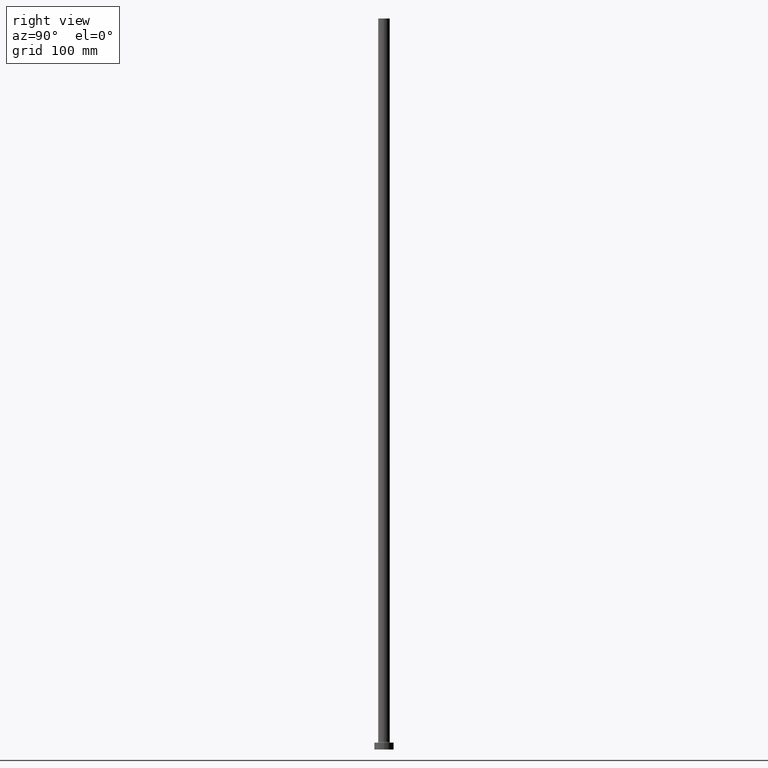
[diagram: clean part render]
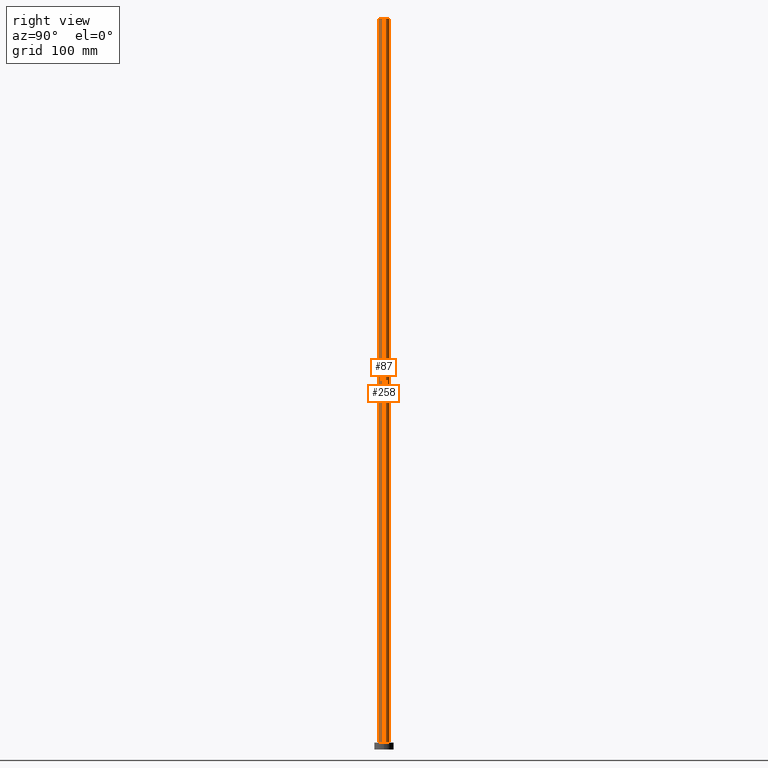
[diagram: same view with one multi-face feature highlighted, each face labeled with its STEP entity id]
A machine part, right view. The highlighted faces form ONE feature: a constant-radius fillet chain: 2 tangent blend faces with common blend radius 6 mm. The faces share edges in the B-rep.
Their STEP definitions:
[1] entity #87 (Cylinder):
#4 = CARTESIAN_POINT ( 'NONE',  ( -6.000000000000000888, 0.000000000000000000, 7.700000000000040146 ) ) ;
#9 = EDGE_CURVE ( 'NONE', #302, #449, #195, .T. ) ;
#29 = DIRECTION ( 'NONE',  ( 1.000000000000000000, 0.000000000000000000, 0.000000000000000000 ) ) ;
#31 = DIRECTION ( 'NONE',  ( -0.000000000000000000, -0.000000000000000000, -1.000000000000000000 ) ) ;
#46 = EDGE_LOOP ( 'NONE', ( #64, #174, #438, #212 ) ) ;
#57 = CARTESIAN_POINT ( 'NONE',  ( -6.000000000000000888, 0.000000000000000000, 750.0000000000000000 ) ) ;
#64 = ORIENTED_EDGE ( 'NONE', *, *, #9, .F. ) ;
#65 = VERTEX_POINT ( 'NONE', #57 ) ;
#68 = CARTESIAN_POINT ( 'NONE',  ( -6.000000000000000888, 0.000000000000000000, 750.0000000000000000 ) ) ;
#87 = ADVANCED_FACE ( 'NONE', ( #424 ), #232, .T. ) ;
#98 = EDGE_CURVE ( 'NONE', #65, #302, #243, .T. ) ;
#142 = CARTESIAN_POINT ( 'NONE',  ( 0.000000000000000000, 0.000000000000000000, 750.0000000000000000 ) ) ;
#144 = VECTOR ( 'NONE', #407, 1000.000000000000000 ) ;
#146 = VECTOR ( 'NONE', #364, 1000.000000000000000 ) ;
#174 = ORIENTED_EDGE ( 'NONE', *, *, #98, .F. ) ;
#182 = CARTESIAN_POINT ( 'NONE',  ( 0.000000000000000000, 0.000000000000000000, 750.0000000000000000 ) ) ;
#195 = LINE ( 'NONE', #259, #144 ) ;
#205 = EDGE_CURVE ( 'NONE', #242, #449, #461, .T. ) ;
#209 = AXIS2_PLACEMENT_3D ( 'NONE', #272, #350, #29 ) ;
#212 = ORIENTED_EDGE ( 'NONE', *, *, #205, .T. ) ;
#231 = CARTESIAN_POINT ( 'NONE',  ( 6.000000000000000888, 7.347880794884119736E-16, 7.700000000000040146 ) ) ;
#232 = CYLINDRICAL_SURFACE ( 'NONE', #331, 6.000000000000000888 ) ;
#240 = DIRECTION ( 'NONE',  ( -1.000000000000000000, 0.000000000000000000, 0.000000000000000000 ) ) ;
#242 = VERTEX_POINT ( 'NONE', #4 ) ;
#243 = CIRCLE ( 'NONE', #426, 6.000000000000000888 ) ;
#248 = EDGE_CURVE ( 'NONE', #65, #242, #332, .T. ) ;
#259 = CARTESIAN_POINT ( 'NONE',  ( 6.000000000000000888, 7.347880794884119736E-16, 750.0000000000000000 ) ) ;
#272 = CARTESIAN_POINT ( 'NONE',  ( 0.000000000000000000, 0.000000000000000000, 7.700000000000040146 ) ) ;
#302 = VERTEX_POINT ( 'NONE', #433 ) ;
#331 = AXIS2_PLACEMENT_3D ( 'NONE', #182, #31, #240 ) ;
#332 = LINE ( 'NONE', #68, #146 ) ;
#344 = DIRECTION ( 'NONE',  ( 1.000000000000000000, 0.000000000000000000, 0.000000000000000000 ) ) ;
#350 = DIRECTION ( 'NONE',  ( 0.000000000000000000, 0.000000000000000000, 1.000000000000000000 ) ) ;
#364 = DIRECTION ( 'NONE',  ( -0.000000000000000000, -0.000000000000000000, -1.000000000000000000 ) ) ;
#381 = DIRECTION ( 'NONE',  ( 0.000000000000000000, 0.000000000000000000, 1.000000000000000000 ) ) ;
#407 = DIRECTION ( 'NONE',  ( -0.000000000000000000, -0.000000000000000000, -1.000000000000000000 ) ) ;
#424 = FACE_OUTER_BOUND ( 'NONE', #46, .T. ) ;
#426 = AXIS2_PLACEMENT_3D ( 'NONE', #142, #381, #344 ) ;
#433 = CARTESIAN_POINT ( 'NONE',  ( 6.000000000000000888, 7.347880794884119736E-16, 750.0000000000000000 ) ) ;
#438 = ORIENTED_EDGE ( 'NONE', *, *, #248, .T. ) ;
#449 = VERTEX_POINT ( 'NONE', #231 ) ;
#461 = CIRCLE ( 'NONE', #209, 6.000000000000000888 ) ;
[2] entity #258 (Cylinder):
#4 = CARTESIAN_POINT ( 'NONE',  ( -6.000000000000000888, 0.000000000000000000, 7.700000000000040146 ) ) ;
#8 = CYLINDRICAL_SURFACE ( 'NONE', #130, 6.000000000000000888 ) ;
#9 = EDGE_CURVE ( 'NONE', #302, #449, #195, .T. ) ;
#14 = DIRECTION ( 'NONE',  ( -1.000000000000000000, 0.000000000000000000, 0.000000000000000000 ) ) ;
#18 = DIRECTION ( 'NONE',  ( 0.000000000000000000, 0.000000000000000000, 1.000000000000000000 ) ) ;
#57 = CARTESIAN_POINT ( 'NONE',  ( -6.000000000000000888, 0.000000000000000000, 750.0000000000000000 ) ) ;
#65 = VERTEX_POINT ( 'NONE', #57 ) ;
#68 = CARTESIAN_POINT ( 'NONE',  ( -6.000000000000000888, 0.000000000000000000, 750.0000000000000000 ) ) ;
#75 = CIRCLE ( 'NONE', #341, 6.000000000000000888 ) ;
#94 = CIRCLE ( 'NONE', #187, 6.000000000000000888 ) ;
#109 = ORIENTED_EDGE ( 'NONE', *, *, #379, .T. ) ;
#130 = AXIS2_PLACEMENT_3D ( 'NONE', #440, #191, #14 ) ;
#136 = CARTESIAN_POINT ( 'NONE',  ( 0.000000000000000000, 0.000000000000000000, 7.700000000000040146 ) ) ;
#138 = DIRECTION ( 'NONE',  ( 1.000000000000000000, 0.000000000000000000, 0.000000000000000000 ) ) ;
#144 = VECTOR ( 'NONE', #407, 1000.000000000000000 ) ;
#146 = VECTOR ( 'NONE', #364, 1000.000000000000000 ) ;
#168 = ORIENTED_EDGE ( 'NONE', *, *, #248, .F. ) ;
#187 = AXIS2_PLACEMENT_3D ( 'NONE', #252, #439, #368 ) ;
#191 = DIRECTION ( 'NONE',  ( -0.000000000000000000, -0.000000000000000000, -1.000000000000000000 ) ) ;
#195 = LINE ( 'NONE', #259, #144 ) ;
#231 = CARTESIAN_POINT ( 'NONE',  ( 6.000000000000000888, 7.347880794884119736E-16, 7.700000000000040146 ) ) ;
#242 = VERTEX_POINT ( 'NONE', #4 ) ;
#248 = EDGE_CURVE ( 'NONE', #65, #242, #332, .T. ) ;
#249 = ORIENTED_EDGE ( 'NONE', *, *, #309, .F. ) ;
#252 = CARTESIAN_POINT ( 'NONE',  ( 0.000000000000000000, 0.000000000000000000, 750.0000000000000000 ) ) ;
#258 = ADVANCED_FACE ( 'NONE', ( #325 ), #8, .T. ) ;
#259 = CARTESIAN_POINT ( 'NONE',  ( 6.000000000000000888, 7.347880794884119736E-16, 750.0000000000000000 ) ) ;
#302 = VERTEX_POINT ( 'NONE', #433 ) ;
#309 = EDGE_CURVE ( 'NONE', #302, #65, #94, .T. ) ;
#315 = EDGE_LOOP ( 'NONE', ( #249, #416, #109, #168 ) ) ;
#325 = FACE_OUTER_BOUND ( 'NONE', #315, .T. ) ;
#332 = LINE ( 'NONE', #68, #146 ) ;
#341 = AXIS2_PLACEMENT_3D ( 'NONE', #136, #18, #138 ) ;
#364 = DIRECTION ( 'NONE',  ( -0.000000000000000000, -0.000000000000000000, -1.000000000000000000 ) ) ;
#368 = DIRECTION ( 'NONE',  ( 1.000000000000000000, 0.000000000000000000, 0.000000000000000000 ) ) ;
#379 = EDGE_CURVE ( 'NONE', #449, #242, #75, .T. ) ;
#407 = DIRECTION ( 'NONE',  ( -0.000000000000000000, -0.000000000000000000, -1.000000000000000000 ) ) ;
#416 = ORIENTED_EDGE ( 'NONE', *, *, #9, .T. ) ;
#433 = CARTESIAN_POINT ( 'NONE',  ( 6.000000000000000888, 7.347880794884119736E-16, 750.0000000000000000 ) ) ;
#439 = DIRECTION ( 'NONE',  ( 0.000000000000000000, 0.000000000000000000, 1.000000000000000000 ) ) ;
#440 = CARTESIAN_POINT ( 'NONE',  ( 0.000000000000000000, 0.000000000000000000, 750.0000000000000000 ) ) ;
#449 = VERTEX_POINT ( 'NONE', #231 ) ;